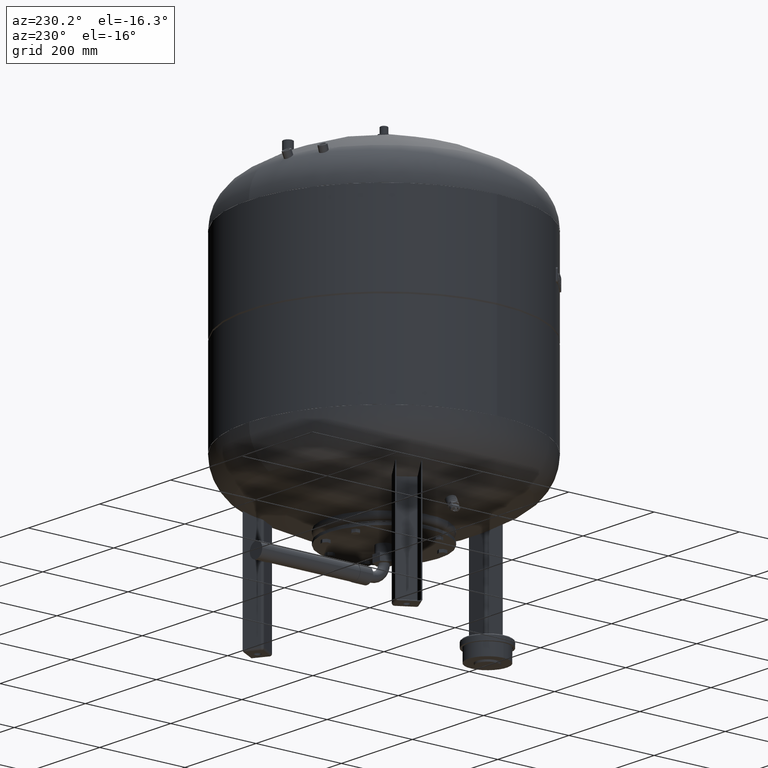
[diagram: clean part render]
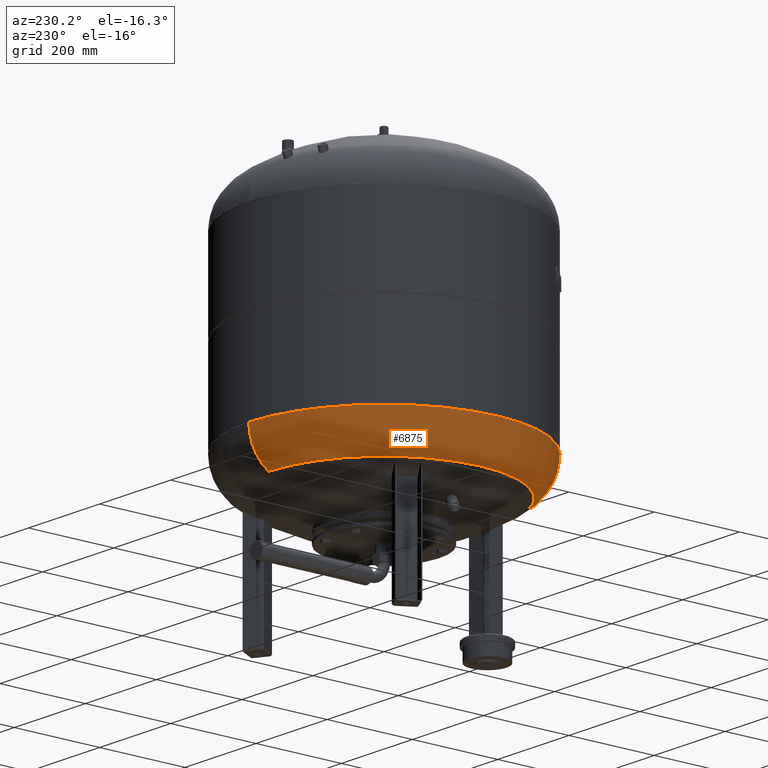
[diagram: same view with one face highlighted and labeled with its STEP entity id]
A machine part, auxiliary view. The second image highlights one B-rep face of the part: STEP entity #6875.
In plain terms, the highlighted toroidal blend (fillet) surface has major radius 218 mm and minor (blend) radius 99 mm.
Its self-contained STEP definition (entity closure, byte-faithful):
#6780=CARTESIAN_POINT('',(-317.000000000000060,-2.971473E-014,351.759449372628580));
#6781=VERTEX_POINT('',#6780);
#6805=CARTESIAN_POINT('',(-3.882002E-014,317.0,351.759449372628690));
#6806=VERTEX_POINT('',#6805);
#6814=CARTESIAN_POINT('',(-1.556097E-014,-2.971473E-014,351.759449372628640));
#6815=DIRECTION('',(0.0,0.0,1.0));
#6816=DIRECTION('',(-1.0,0.0,0.0));
#6817=AXIS2_PLACEMENT_3D('',#6814,#6815,#6816);
#6818=CIRCLE('',#6817,317.000000000000060);
#6819=EDGE_CURVE('',#6806,#6781,#6818,.T.);
#6824=CARTESIAN_POINT('',(0.0,-2.971473E-014,351.759449372628640));
#6825=DIRECTION('',(-9.619823E-017,-1.836970E-016,1.0));
#6826=DIRECTION('',(0.0,-1.0,0.0));
#6827=AXIS2_PLACEMENT_3D('',#6824,#6825,#6826);
#6828=TOROIDAL_SURFACE('',#6827,218.0,99.0);
#6829=CARTESIAN_POINT('',(-3.021869E-030,-317.000000000000110,351.759449372628580));
#6830=VERTEX_POINT('',#6829);
#6831=CARTESIAN_POINT('',(8.065826E-015,-270.639024390243830,267.913560318702370));
#6832=VERTEX_POINT('',#6831);
#6833=CARTESIAN_POINT('',(0.0,-218.000000000000030,351.759449372628580));
#6834=DIRECTION('',(1.0,0.0,0.0));
#6835=DIRECTION('',(0.0,-1.0,0.0));
#6836=AXIS2_PLACEMENT_3D('',#6833,#6834,#6835);
#6837=CIRCLE('',#6836,99.0);
#6838=EDGE_CURVE('',#6830,#6832,#6837,.T.);
#6839=ORIENTED_EDGE('',*,*,#6838,.F.);
#6840=CARTESIAN_POINT('',(-1.556097E-014,-2.971473E-014,351.759449372628640));
#6841=DIRECTION('',(0.0,0.0,1.0));
#6842=DIRECTION('',(-1.0,0.0,0.0));
#6843=AXIS2_PLACEMENT_3D('',#6840,#6841,#6842);
#6844=CIRCLE('',#6843,317.000000000000060);
#6845=EDGE_CURVE('',#6781,#6830,#6844,.T.);
#6846=ORIENTED_EDGE('',*,*,#6845,.F.);
#6847=ORIENTED_EDGE('',*,*,#6819,.F.);
#6848=CARTESIAN_POINT('',(-2.507680E-014,270.639024390243830,267.913560318702480));
#6849=VERTEX_POINT('',#6848);
#6850=CARTESIAN_POINT('',(-2.669642E-014,217.999999999999970,351.759449372628690));
#6851=DIRECTION('',(-1.0,0.0,0.0));
#6852=DIRECTION('',(0.0,1.0,0.0));
#6853=AXIS2_PLACEMENT_3D('',#6850,#6851,#6852);
#6854=CIRCLE('',#6853,99.0);
#6855=EDGE_CURVE('',#6806,#6849,#6854,.T.);
#6856=ORIENTED_EDGE('',*,*,#6855,.T.);
#6857=CARTESIAN_POINT('',(-270.639024390243830,-1.431249E-014,267.913560318702420));
#6858=VERTEX_POINT('',#6857);
#6859=CARTESIAN_POINT('',(-7.495146E-015,-1.431249E-014,267.913560318702420));
#6860=DIRECTION('',(0.0,0.0,1.0));
#6861=DIRECTION('',(-1.0,0.0,0.0));
#6862=AXIS2_PLACEMENT_3D('',#6859,#6860,#6861);
#6863=CIRCLE('',#6862,270.639024390243830);
#6864=EDGE_CURVE('',#6849,#6858,#6863,.T.);
#6865=ORIENTED_EDGE('',*,*,#6864,.T.);
#6866=CARTESIAN_POINT('',(-7.495146E-015,-1.431249E-014,267.913560318702420));
#6867=DIRECTION('',(0.0,0.0,1.0));
#6868=DIRECTION('',(-1.0,0.0,0.0));
#6869=AXIS2_PLACEMENT_3D('',#6866,#6867,#6868);
#6870=CIRCLE('',#6869,270.639024390243830);
#6871=EDGE_CURVE('',#6858,#6832,#6870,.T.);
#6872=ORIENTED_EDGE('',*,*,#6871,.T.);
#6873=EDGE_LOOP('',(#6839,#6846,#6847,#6856,#6865,#6872));
#6874=FACE_OUTER_BOUND('',#6873,.T.);
#6875=ADVANCED_FACE('',(#6874),#6828,.T.);